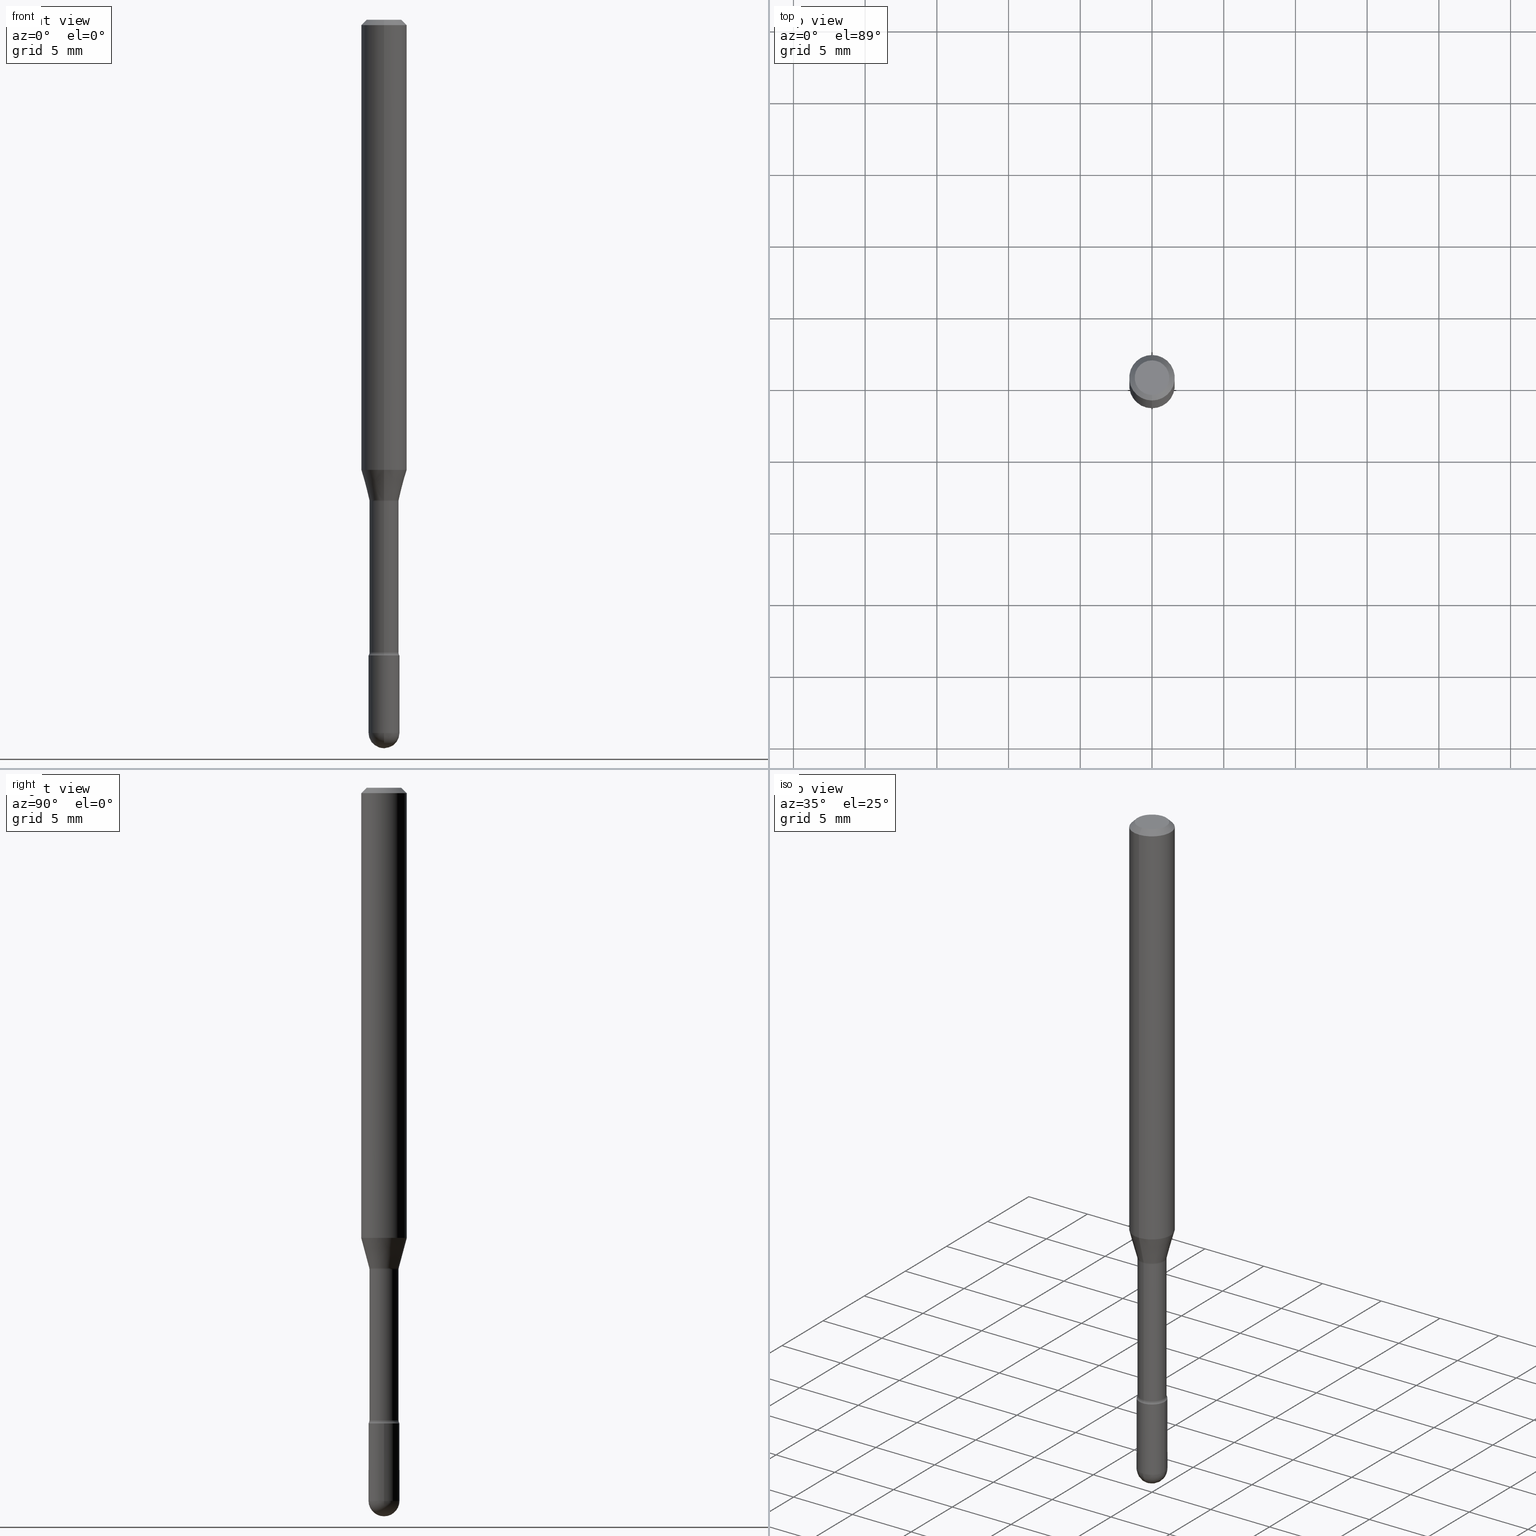
[diagram: canonical four-view strip — front | top / right | iso, engineering-drawing reading convention]
A machine part, canonical four-view strip (front | top / right | iso — engineering-drawing reading convention). The complete STEP part file that produces these views, byte-faithful:
ISO-10303-21;
HEADER;
FILE_DESCRIPTION (( 'STEP AP203' ),
    '1' );
FILE_NAME ('03770.STEP',
    '2024-04-09T20:24:10',
    ( '' ),
    ( '' ),
    'SwSTEP 2.0',
    'SolidWorks 2023',
    '' );
FILE_SCHEMA (( 'CONFIG_CONTROL_DESIGN' ));
ENDSEC;

DATA;
#1 = AXIS2_PLACEMENT_3D ( 'NONE', #249, #113, #322 ) ;
#2 = CARTESIAN_POINT ( 'NONE',  ( 3.223371610898601167E-29, -4.602070291655120308E-15, -1.318092501787273330 ) ) ;
#3 = CIRCLE ( 'NONE', #505, 0.04749999999999999362 ) ;
#4 = PRODUCT_RELATED_PRODUCT_CATEGORY ( 'detail', '', ( #106 ) ) ;
#5 = CARTESIAN_POINT ( 'NONE',  ( 2.023649479663009312E-45, -2.889022025578321170E-31, -8.274793592100877944E-17 ) ) ;
#6 = PERSON_AND_ORGANIZATION ( #358, #391 ) ;
#7 = DIRECTION ( 'NONE',  ( -2.445482093652650553E-29, 3.491462310433390042E-15, 1.000000000000000000 ) ) ;
#8 = CARTESIAN_POINT ( 'NONE',  ( 3.316907271900976096E-16, 0.04749999999999999362, 3.181827173953264696E-17 ) ) ;
#9 = CARTESIAN_POINT ( 'NONE',  ( 4.440892098500625669E-16, 0.06250000000000000000, 2.598570044891592103E-16 ) ) ;
#10 = ADVANCED_FACE ( 'NONE', ( #530 ), #302, .T. ) ;
#11 = CIRCLE ( 'NONE', #463, 0.04250000000000000999 ) ;
#12 = PLANE ( 'NONE',  #235 ) ;
#13 = ORIENTED_EDGE ( 'NONE', *, *, #430, .T. ) ;
#14 = DIRECTION ( 'NONE',  ( -2.445482093652650553E-29, 3.491462310433390042E-15, 1.000000000000000000 ) ) ;
#15 = DIRECTION ( 'NONE',  ( 1.000000000000000000, -6.982962677686276177E-15, 0.000000000000000000 ) ) ;
#16 = VERTEX_POINT ( 'NONE', #353 ) ;
#17 = APPLICATION_PROTOCOL_DEFINITION ( 'international standard', 'config_control_design', 1994, #510 ) ;
#18 = EDGE_CURVE ( 'NONE', #16, #429, #426, .T. ) ;
#19 = DIRECTION ( 'NONE',  ( -2.445482093652650553E-29, 3.491462310433390042E-15, 1.000000000000000000 ) ) ;
#20 = AXIS2_PLACEMENT_3D ( 'NONE', #137, #483, #393 ) ;
#21 = AXIS2_PLACEMENT_3D ( 'NONE', #123, #560, #178 ) ;
#22 = SECURITY_CLASSIFICATION ( '', '', #190 ) ;
#23 = CARTESIAN_POINT ( 'NONE',  ( 4.267366253423875796E-29, -6.092601731706266027E-15, -1.745000000000000107 ) ) ;
#24 = ORIENTED_EDGE ( 'NONE', *, *, #28, .T. ) ;
#25 = PERSON_AND_ORGANIZATION_ROLE ( 'creator' ) ;
#26 = CYLINDRICAL_SURFACE ( 'NONE', #250, 0.03995000000000003409 ) ;
#27 = DIRECTION ( 'NONE',  ( -6.982962677686265922E-15, -1.000000000000000000, 3.491462310433390042E-15 ) ) ;
#28 = EDGE_CURVE ( 'NONE', #310, #143, #104, .T. ) ;
#29 = EDGE_LOOP ( 'NONE', ( #255, #82, #39, #333, #557 ) ) ;
#30 = AXIS2_PLACEMENT_3D ( 'NONE', #227, #49, #186 ) ;
#31 = AXIS2_PLACEMENT_3D ( 'NONE', #44, #307, #42 ) ;
#32 = CARTESIAN_POINT ( 'NONE',  ( 3.019806626980851006E-16, 0.04249999999999389683, -1.745000000000000329 ) ) ;
#33 = VERTEX_POINT ( 'NONE', #276 ) ;
#34 = DIRECTION ( 'NONE',  ( -6.982962677686265922E-15, -1.000000000000000000, 6.838167693777870716E-15 ) ) ;
#35 = MANIFOLD_SOLID_BREP ( 'Body-Move/Copy2[1]', #79 ) ;
#36 = ORIENTED_EDGE ( 'NONE', *, *, #421, .F. ) ;
#37 = EDGE_CURVE ( 'NONE', #205, #33, #361, .T. ) ;
#38 = CARTESIAN_POINT ( 'NONE',  ( 4.246883172195400307E-29, -6.063423629229748682E-15, -1.736633549139569688 ) ) ;
#39 = ORIENTED_EDGE ( 'NONE', *, *, #92, .F. ) ;
#40 = AXIS2_PLACEMENT_3D ( 'NONE', #412, #67, #291 ) ;
#41 = AXIS2_PLACEMENT_3D ( 'NONE', #169, #512, #294 ) ;
#42 = DIRECTION ( 'NONE',  ( 7.105427357601001859E-15, 1.000000000000000000, 0.000000000000000000 ) ) ;
#43 = ORIENTED_EDGE ( 'NONE', *, *, #162, .T. ) ;
#44 = CARTESIAN_POINT ( 'NONE',  ( 3.904432333002176917E-16, 0.05494999999999397589, -1.736633549139569910 ) ) ;
#45 = DIRECTION ( 'NONE',  ( 1.000000000000000000, -6.982962677686266711E-15, 4.876176775795935793E-29 ) ) ;
#46 = EDGE_CURVE ( 'NONE', #205, #555, #48, .T. ) ;
#47 = EDGE_LOOP ( 'NONE', ( #475, #175 ) ) ;
#48 = CIRCLE ( 'NONE', #193, 0.01499999999999997689 ) ;
#49 = DIRECTION ( 'NONE',  ( -2.445468806185136597E-29, 3.491481338843145583E-15, 1.000000000000000000 ) ) ;
#50 = CIRCLE ( 'NONE', #100, 0.01500000000000001159 ) ;
#51 = DATE_AND_TIME ( #273, #80 ) ;
#52 = DIRECTION ( 'NONE',  ( 7.105427357600997914E-15, 1.000000000000000000, 0.000000000000000000 ) ) ;
#53 = ADVANCED_FACE ( 'NONE', ( #91 ), #525, .T. ) ;
#54 = LINE ( 'NONE', #453, #265 ) ;
#55 = LINE ( 'NONE', #9, #373 ) ;
#56 = ADVANCED_FACE ( 'NONE', ( #563 ), #93, .T. ) ;
#57 = CIRCLE ( 'NONE', #533, 0.04249999999999999611 ) ;
#58 = ORIENTED_EDGE ( 'NONE', *, *, #239, .T. ) ;
#59 = CARTESIAN_POINT ( 'NONE',  ( -1.169113584055446105E-44, 1.669184350826100908E-30, 4.780733988912460139E-16 ) ) ;
#60 = DIRECTION ( 'NONE',  ( -6.982962677686265922E-15, -1.000000000000000000, 4.370956789862821150E-15 ) ) ;
#61 = EDGE_CURVE ( 'NONE', #385, #33, #550, .T. ) ;
#62 = PERSON_AND_ORGANIZATION_ROLE ( 'design_supplier' ) ;
#63 = MECHANICAL_CONTEXT ( 'NONE', #90, 'mechanical' ) ;
#64 = DIRECTION ( 'NONE',  ( -2.445482093652650553E-29, 3.491462310433390042E-15, 1.000000000000000000 ) ) ;
#65 = ORIENTED_EDGE ( 'NONE', *, *, #102, .T. ) ;
#66 = COORDINATED_UNIVERSAL_TIME_OFFSET ( 5, 0, .BEHIND. ) ;
#67 = DIRECTION ( 'NONE',  ( -2.445482093652650553E-29, 3.491462310433390042E-15, 1.000000000000000000 ) ) ;
#68 = VERTEX_POINT ( 'NONE', #441 ) ;
#69 = DATE_AND_TIME ( #414, #214 ) ;
#70 = CIRCLE ( 'NONE', #31, 0.01499999999999997689 ) ;
#71 = EDGE_CURVE ( 'NONE', #429, #238, #11, .T. ) ;
#72 = CARTESIAN_POINT ( 'NONE',  ( 2.967759138017140317E-16, 0.04249999999999314049, -1.957500000000000462 ) ) ;
#73 = ADVANCED_FACE ( 'NONE', ( #268 ), #183, .T. ) ;
#74 = FACE_OUTER_BOUND ( 'NONE', #216, .T. ) ;
#75 = VERTEX_POINT ( 'NONE', #395 ) ;
#76 = CARTESIAN_POINT ( 'NONE',  ( -3.837137991388278969E-16, -0.05495000000000461321, -1.321974787463810808 ) ) ;
#77 = ORIENTED_EDGE ( 'NONE', *, *, #443, .F. ) ;
#78 = DESIGN_CONTEXT ( 'detailed design', #510, 'design' ) ;
#79 = CLOSED_SHELL ( 'NONE', ( #386, #53, #247, #56, #73 ) ) ;
#80 = LOCAL_TIME ( 16, 24, 10.00000000000000000, #331 ) ;
#81 = CARTESIAN_POINT ( 'NONE',  ( 2.967759138017089534E-16, 0.04249999999999390377, -1.745000000000000329 ) ) ;
#82 = ORIENTED_EDGE ( 'NONE', *, *, #206, .T. ) ;
#83 = EDGE_CURVE ( 'NONE', #289, #68, #184, .T. ) ;
#84 = DIRECTION ( 'NONE',  ( -6.982962677686265922E-15, -1.000000000000000000, 3.491462310433390042E-15 ) ) ;
#85 = ORIENTED_EDGE ( 'NONE', *, *, #262, .T. ) ;
#86 = ORIENTED_EDGE ( 'NONE', *, *, #491, .F. ) ;
#87 = AXIS2_PLACEMENT_3D ( 'NONE', #233, #406, #195 ) ;
#88 = VECTOR ( 'NONE', #313, 39.37007874015748143 ) ;
#89 = LENGTH_MEASURE_WITH_UNIT ( LENGTH_MEASURE( 0.02539999999999999897 ), #447 );
#90 = APPLICATION_CONTEXT ( 'configuration controlled 3d designs of mechanical parts and assemblies' ) ;
#91 = FACE_OUTER_BOUND ( 'NONE', #337, .T. ) ;
#92 = EDGE_CURVE ( 'NONE', #201, #287, #415, .T. ) ;
#93 = SPHERICAL_SURFACE ( 'NONE', #348, 0.04249999999999994754 ) ;
#94 = EDGE_CURVE ( 'NONE', #310, #75, #503, .T. ) ;
#95 = APPROVAL_STATUS ( 'not_yet_approved' ) ;
#96 = DIRECTION ( 'NONE',  ( 6.982962677686265922E-15, 1.000000000000000000, -6.427877632151215276E-15 ) ) ;
#97 = PERSON_AND_ORGANIZATION ( #358, #391 ) ;
#98 = CIRCLE ( 'NONE', #41, 0.04249999999999994754 ) ;
#99 = DIRECTION ( 'NONE',  ( -6.982962677686265133E-15, -1.000000000000000000, 6.838167693777879394E-15 ) ) ;
#100 = AXIS2_PLACEMENT_3D ( 'NONE', #364, #392, #52 ) ;
#101 = CC_DESIGN_SECURITY_CLASSIFICATION ( #22, ( #374 ) ) ;
#102 = EDGE_CURVE ( 'NONE', #143, #264, #55, .T. ) ;
#103 = DIRECTION ( 'NONE',  ( 2.445482093652650553E-29, -3.491462310433390042E-15, -1.000000000000000000 ) ) ;
#104 = LINE ( 'NONE', #314, #514 ) ;
#105 = DIRECTION ( 'NONE',  ( -6.982962677686265922E-15, -1.000000000000000000, 3.491462310433390436E-15 ) ) ;
#106 = PRODUCT ( '03770', '03770', '', ( #63 ) ) ;
#107 = LINE ( 'NONE', #369, #120 ) ;
#108 = DIRECTION ( 'NONE',  ( -7.105427357601001070E-15, -1.000000000000000000, 0.000000000000000000 ) ) ;
#109 = AXIS2_PLACEMENT_3D ( 'NONE', #482, #231, #480 ) ;
#110 = ORIENTED_EDGE ( 'NONE', *, *, #162, .F. ) ;
#111 = LOCAL_TIME ( 16, 24, 10.00000000000000000, #187 ) ;
#112 = PERSON_AND_ORGANIZATION ( #358, #391 ) ;
#113 = DIRECTION ( 'NONE',  ( -2.445482093652650553E-29, 3.491462310433390042E-15, 1.000000000000000000 ) ) ;
#114 = ORIENTED_EDGE ( 'NONE', *, *, #542, .F. ) ;
#115 = DIRECTION ( 'NONE',  ( -2.445468806185136877E-29, 3.491481338843145188E-15, 1.000000000000000000 ) ) ;
#116 = ORIENTED_EDGE ( 'NONE', *, *, #71, .F. ) ;
#117 = PERSON_AND_ORGANIZATION_ROLE ( 'creator' ) ;
#118 = CARTESIAN_POINT ( 'NONE',  ( 0.04249999999999999611, -6.389410850082955497E-15, -1.745000000000000107 ) ) ;
#119 = AXIS2_PLACEMENT_3D ( 'NONE', #532, #528, #99 ) ;
#120 = VECTOR ( 'NONE', #225, 39.37007874015748143 ) ;
#121 = ADVANCED_FACE ( 'NONE', ( #161 ), #492, .T. ) ;
#122 = ORIENTED_EDGE ( 'NONE', *, *, #484, .T. ) ;
#123 = CARTESIAN_POINT ( 'NONE',  ( -1.169113584055446105E-44, 1.669184350826100908E-30, 4.780733988912460139E-16 ) ) ;
#124 = APPROVAL ( #298, 'UNSPECIFIED' ) ;
#125 = EDGE_LOOP ( 'NONE', ( #301, #488, #221, #77 ) ) ;
#126 = DIRECTION ( 'NONE',  ( -2.445482093652650553E-29, 3.491462310433390042E-15, 1.000000000000000000 ) ) ;
#127 = COORDINATED_UNIVERSAL_TIME_OFFSET ( 5, 0, .BEHIND. ) ;
#128 = EDGE_CURVE ( 'NONE', #469, #385, #409, .T. ) ;
#129 = ORIENTED_EDGE ( 'NONE', *, *, #181, .T. ) ;
#130 = AXIS2_PLACEMENT_3D ( 'NONE', #456, #64, #433 ) ;
#131 = CARTESIAN_POINT ( 'NONE',  ( 0.000000000000000000, 0.000000000000000000, 0.000000000000000000 ) ) ;
#132 = APPROVAL_ROLE ( '' ) ;
#133 = ORIENTED_EDGE ( 'NONE', *, *, #46, .F. ) ;
#134 = DIRECTION ( 'NONE',  ( -6.982962677686266711E-15, -1.000000000000000000, 6.427877632151208176E-15 ) ) ;
#135 = ORIENTED_EDGE ( 'NONE', *, *, #128, .F. ) ;
#136 = CARTESIAN_POINT ( 'NONE',  ( -4.364351673553912750E-16, -0.06250000000000005551, -0.01499999999999986587 ) ) ;
#137 = CARTESIAN_POINT ( 'NONE',  ( 4.787005188107404686E-29, -6.834574720785457840E-15, -1.957500000000000018 ) ) ;
#138 = EDGE_CURVE ( 'NONE', #33, #385, #256, .T. ) ;
#139 = CIRCLE ( 'NONE', #398, 0.04249999999999999611 ) ;
#140 = AXIS2_PLACEMENT_3D ( 'NONE', #164, #351, #466 ) ;
#141 = LINE ( 'NONE', #522, #88 ) ;
#142 = CC_DESIGN_DATE_AND_TIME_ASSIGNMENT ( #69, #344, ( #22 ) ) ;
#143 = VERTEX_POINT ( 'NONE', #282 ) ;
#144 = EDGE_LOOP ( 'NONE', ( #86, #390, #562, #155 ) ) ;
#145 = CARTESIAN_POINT ( 'NONE',  ( -2.789693589735665255E-16, -0.03995000000000003409, 6.175573181930600695E-16 ) ) ;
#146 = EDGE_CURVE ( 'NONE', #555, #437, #139, .T. ) ;
#147 = CC_DESIGN_APPROVAL ( #504, ( #267 ) ) ;
#148 = ORIENTED_EDGE ( 'NONE', *, *, #46, .T. ) ;
#149 = DIRECTION ( 'NONE',  ( -2.445482093652650834E-29, 3.491462310433390042E-15, 1.000000000000000000 ) ) ;
#150 = ORIENTED_EDGE ( 'NONE', *, *, #206, .F. ) ;
#151 = CARTESIAN_POINT ( 'NONE',  ( 2.023649479663009312E-45, -2.889022025578321170E-31, -8.274793592100877944E-17 ) ) ;
#152 = CARTESIAN_POINT ( 'NONE',  ( 4.787005188107404686E-29, -6.834574720785457840E-15, -1.957500000000000018 ) ) ;
#153 = ADVANCED_BREP_SHAPE_REPRESENTATION ( '03770', ( #35, #425, #408 ), #516 ) ;
#154 = FACE_OUTER_BOUND ( 'NONE', #125, .T. ) ;
#155 = ORIENTED_EDGE ( 'NONE', *, *, #198, .T. ) ;
#156 = AXIS2_PLACEMENT_3D ( 'NONE', #405, #539, #199 ) ;
#157 = DATE_TIME_ROLE ( 'creation_date' ) ;
#158 = LOCAL_TIME ( 16, 24, 10.00000000000000000, #127 ) ;
#159 = DIRECTION ( 'NONE',  ( -6.982962677686266711E-15, -1.000000000000000000, 6.427877632151208176E-15 ) ) ;
#160 = EDGE_LOOP ( 'NONE', ( #261, #315, #13, #519 ) ) ;
#161 = FACE_OUTER_BOUND ( 'NONE', #163, .T. ) ;
#162 = EDGE_CURVE ( 'NONE', #242, #143, #558, .T. ) ;
#163 = EDGE_LOOP ( 'NONE', ( #43, #65, #384, #173 ) ) ;
#164 = CARTESIAN_POINT ( 'NONE',  ( 3.232848105305976376E-29, -4.615650300851030950E-15, -1.321974787463811252 ) ) ;
#165 = SHAPE_DEFINITION_REPRESENTATION ( #285, #153 ) ;
#166 = ORIENTED_EDGE ( 'NONE', *, *, #61, .F. ) ;
#167 = AXIS2_PLACEMENT_3D ( 'NONE', #279, #543, #540 ) ;
#168 = AXIS2_PLACEMENT_3D ( 'NONE', #59, #14, #105 ) ;
#169 = CARTESIAN_POINT ( 'NONE',  ( 4.787005188107404686E-29, -6.834574720785457840E-15, -1.957500000000000018 ) ) ;
#170 = PERSON_AND_ORGANIZATION ( #358, #391 ) ;
#171 = EDGE_LOOP ( 'NONE', ( #58, #24, #110, #212 ) ) ;
#172 = CARTESIAN_POINT ( 'NONE',  ( -3.773273898774340269E-16, -0.04749999999999999362, 8.309652382457724015E-17 ) ) ;
#173 = ORIENTED_EDGE ( 'NONE', *, *, #362, .F. ) ;
#174 = DIRECTION ( 'NONE',  ( -2.445482093652650553E-29, 3.491462310433390042E-15, 1.000000000000000000 ) ) ;
#175 = ORIENTED_EDGE ( 'NONE', *, *, #83, .T. ) ;
#176 = VECTOR ( 'NONE', #523, 39.37007874015748143 ) ;
#177 = CIRCLE ( 'NONE', #303, 0.04249999999999999611 ) ;
#178 = DIRECTION ( 'NONE',  ( -6.982962677686265133E-15, -1.000000000000000000, 3.491462310433388464E-15 ) ) ;
#179 = ORIENTED_EDGE ( 'NONE', *, *, #37, .F. ) ;
#180 = DIRECTION ( 'NONE',  ( 1.000000000000000000, -6.982962677686273810E-15, 0.000000000000000000 ) ) ;
#181 = EDGE_CURVE ( 'NONE', #287, #201, #57, .T. ) ;
#182 = CYLINDRICAL_SURFACE ( 'NONE', #168, 0.06250000000000000000 ) ;
#183 = CYLINDRICAL_SURFACE ( 'NONE', #311, 0.04250000000000000999 ) ;
#184 = CIRCLE ( 'NONE', #222, 0.04749999999999999362 ) ;
#185 = APPROVAL_PERSON_ORGANIZATION ( #97, #217, #529 ) ;
#186 = DIRECTION ( 'NONE',  ( 1.000000000000000000, -6.982962677686273810E-15, 0.000000000000000000 ) ) ;
#187 = COORDINATED_UNIVERSAL_TIME_OFFSET ( 5, 0, .BEHIND. ) ;
#188 = EDGE_CURVE ( 'NONE', #238, #201, #544, .T. ) ;
#189 = DIRECTION ( 'NONE',  ( -2.445468806185136597E-29, 3.491481338843145583E-15, 1.000000000000000000 ) ) ;
#190 = SECURITY_CLASSIFICATION_LEVEL ( 'unclassified' ) ;
#191 = CARTESIAN_POINT ( 'NONE',  ( 4.787005188107404686E-29, -6.834574720785457840E-15, -1.957500000000000018 ) ) ;
#192 = DIRECTION ( 'NONE',  ( 6.982962677686265922E-15, 1.000000000000000000, -3.491462310433390042E-15 ) ) ;
#193 = AXIS2_PLACEMENT_3D ( 'NONE', #445, #229, #401 ) ;
#194 = AXIS2_PLACEMENT_3D ( 'NONE', #8, #263, #192 ) ;
#195 = DIRECTION ( 'NONE',  ( -6.982962677686265922E-15, -1.000000000000000000, 3.491462310433390042E-15 ) ) ;
#196 = CARTESIAN_POINT ( 'NONE',  ( 2.929212428171439828E-16, 0.03994999999999399726, -1.736633549139569910 ) ) ;
#197 = CARTESIAN_POINT ( 'NONE',  ( 4.267343066793063832E-29, -6.092634936281288846E-15, -1.745000000000000107 ) ) ;
#198 = EDGE_CURVE ( 'NONE', #264, #549, #363, .T. ) ;
#199 = DIRECTION ( 'NONE',  ( -6.982962677686265922E-15, -1.000000000000000000, 4.370956789862821150E-15 ) ) ;
#200 = CARTESIAN_POINT ( 'NONE',  ( 4.267343066793063832E-29, -6.092634936281288846E-15, -1.745000000000000107 ) ) ;
#201 = VERTEX_POINT ( 'NONE', #118 ) ;
#202 = CARTESIAN_POINT ( 'NONE',  ( 0.000000000000000000, 0.000000000000000000, 0.000000000000000000 ) ) ;
#203 = DIRECTION ( 'NONE',  ( -2.445482093652650553E-29, 3.491462310433390042E-15, 1.000000000000000000 ) ) ;
#204 = AXIS2_PLACEMENT_3D ( 'NONE', #2, #7, #490 ) ;
#205 = VERTEX_POINT ( 'NONE', #370 ) ;
#206 = EDGE_CURVE ( 'NONE', #16, #287, #286, .T. ) ;
#207 = CARTESIAN_POINT ( 'NONE',  ( 3.022230103443863054E-29, -4.314896652492206227E-15, -1.235842254289322151 ) ) ;
#208 = EDGE_LOOP ( 'NONE', ( #446, #129 ) ) ;
#209 = CARTESIAN_POINT ( 'NONE',  ( 2.838618229362026185E-16, 0.03994999999999538504, -1.321974787463811474 ) ) ;
#210 = ORIENTED_EDGE ( 'NONE', *, *, #362, .T. ) ;
#211 = CARTESIAN_POINT ( 'NONE',  ( 4.892754840734779604E-29, -6.980360303238103264E-15, -2.000000000000000000 ) ) ;
#212 = ORIENTED_EDGE ( 'NONE', *, *, #462, .F. ) ;
#213 = AXIS2_PLACEMENT_3D ( 'NONE', #341, #389, #552 ) ;
#214 = LOCAL_TIME ( 16, 24, 10.00000000000000000, #66 ) ;
#215 = CARTESIAN_POINT ( 'NONE',  ( 4.246906247657268007E-29, -6.063390583854980226E-15, -1.736633549139569688 ) ) ;
#216 = EDGE_LOOP ( 'NONE', ( #517, #122, #379, #360 ) ) ;
#217 = APPROVAL ( #95, 'UNSPECIFIED' ) ;
#218 = FACE_OUTER_BOUND ( 'NONE', #473, .T. ) ;
#219 = EDGE_LOOP ( 'NONE', ( #442, #511, #299, #340 ) ) ;
#220 = CARTESIAN_POINT ( 'NONE',  ( -1.169113584055446105E-44, 1.669184350826100908E-30, 4.780733988912460139E-16 ) ) ;
#221 = ORIENTED_EDGE ( 'NONE', *, *, #462, .T. ) ;
#222 = AXIS2_PLACEMENT_3D ( 'NONE', #5, #565, #274 ) ;
#223 = TOROIDAL_SURFACE ( 'NONE', #526, 0.05495000000000003354, 0.01499999999999998036 ) ;
#224 = EDGE_CURVE ( 'NONE', #205, #469, #470, .T. ) ;
#225 = DIRECTION ( 'NONE',  ( -1.807323732225327773E-15, -0.2588190451025178529, 0.9659258262890690894 ) ) ;
#226 = CARTESIAN_POINT ( 'NONE',  ( 4.787005188107404686E-29, -6.834574720785457840E-15, -1.957500000000000018 ) ) ;
#227 = CARTESIAN_POINT ( 'NONE',  ( 4.787005188107404686E-29, -6.834574720785457840E-15, -1.957500000000000018 ) ) ;
#228 = EDGE_CURVE ( 'NONE', #68, #264, #54, .T. ) ;
#229 = DIRECTION ( 'NONE',  ( -1.000000000000000000, 6.982962677686265922E-15, -4.883557194083112340E-29 ) ) ;
#230 = APPROVAL_DATE_TIME ( #51, #217 ) ;
#231 = DIRECTION ( 'NONE',  ( -2.445482093652650553E-29, 3.491462310433390042E-15, 1.000000000000000000 ) ) ;
#232 = CARTESIAN_POINT ( 'NONE',  ( 4.246883172195400307E-29, -6.063423629229748682E-15, -1.736633549139569688 ) ) ;
#233 = CARTESIAN_POINT ( 'NONE',  ( 3.232848105305976376E-29, -4.615650300851030950E-15, -1.321974787463811252 ) ) ;
#234 = DIRECTION ( 'NONE',  ( -2.445482093652650553E-29, 3.491462310433390042E-15, 1.000000000000000000 ) ) ;
#235 = AXIS2_PLACEMENT_3D ( 'NONE', #197, #368, #537 ) ;
#236 = CARTESIAN_POINT ( 'NONE',  ( -1.169113584055446105E-44, 1.669184350826100908E-30, 4.780733988912460139E-16 ) ) ;
#237 = ADVANCED_FACE ( 'NONE', ( #241 ), #335, .F. ) ;
#238 = VERTEX_POINT ( 'NONE', #535 ) ;
#239 = EDGE_CURVE ( 'NONE', #75, #310, #407, .T. ) ;
#240 = FACE_OUTER_BOUND ( 'NONE', #219, .T. ) ;
#241 = FACE_OUTER_BOUND ( 'NONE', #160, .T. ) ;
#242 = VERTEX_POINT ( 'NONE', #330 ) ;
#243 = DIRECTION ( 'NONE',  ( 0.000000000000000000, 0.000000000000000000, 1.000000000000000000 ) ) ;
#244 = UNCERTAINTY_MEASURE_WITH_UNIT (LENGTH_MEASURE( 1.000000000000000082E-05 ), #275, 'distance_accuracy_value', 'NONE');
#245 = CARTESIAN_POINT ( 'NONE',  ( 2.838618229361602172E-16, 0.03995000000000003409, 3.385894795894320077E-16 ) ) ;
#246 = ORIENTED_EDGE ( 'NONE', *, *, #188, .T. ) ;
#247 = ADVANCED_FACE ( 'NONE', ( #448 ), #12, .T. ) ;
#248 = CLOSED_SHELL ( 'NONE', ( #338, #403, #306, #499, #121, #10, #278, #520, #396, #478, #328, #439, #320, #237 ) ) ;
#249 = CARTESIAN_POINT ( 'NONE',  ( 3.232865671003018680E-29, -4.615625145773088922E-15, -1.321974787463811252 ) ) ;
#250 = AXIS2_PLACEMENT_3D ( 'NONE', #220, #174, #343 ) ;
#251 = CARTESIAN_POINT ( 'NONE',  ( -0.04249999999999999611, -6.161624165835330496E-15, -1.745000000000000107 ) ) ;
#252 = FACE_OUTER_BOUND ( 'NONE', #29, .T. ) ;
#253 = ORIENTED_EDGE ( 'NONE', *, *, #198, .F. ) ;
#254 = DIRECTION ( 'NONE',  ( -2.445468806185136597E-29, 3.491481338843145583E-15, 1.000000000000000000 ) ) ;
#255 = ORIENTED_EDGE ( 'NONE', *, *, #325, .T. ) ;
#256 = CIRCLE ( 'NONE', #1, 0.03995000000000000634 ) ;
#257 = AXIS2_PLACEMENT_3D ( 'NONE', #489, #103, #367 ) ;
#258 = FACE_OUTER_BOUND ( 'NONE', #308, .T. ) ;
#259 = ORIENTED_EDGE ( 'NONE', *, *, #146, .F. ) ;
#260 = FACE_OUTER_BOUND ( 'NONE', #295, .T. ) ;
#261 = ORIENTED_EDGE ( 'NONE', *, *, #484, .F. ) ;
#262 = EDGE_CURVE ( 'NONE', #323, #429, #479, .T. ) ;
#263 = DIRECTION ( 'NONE',  ( 2.445482093652650273E-29, -3.491462310433390042E-15, -1.000000000000000000 ) ) ;
#264 = VERTEX_POINT ( 'NONE', #497 ) ;
#265 = VECTOR ( 'NONE', #459, 39.37007874015748143 ) ;
#266 = DIRECTION ( 'NONE',  ( -6.982962677686265922E-15, -1.000000000000000000, 3.491462310433390042E-15 ) ) ;
#267 = PRODUCT_DEFINITION ( 'UNKNOWN', '', #374, #78 ) ;
#268 = FACE_OUTER_BOUND ( 'NONE', #513, .T. ) ;
#269 = DIRECTION ( 'NONE',  ( -1.000000000000000000, 6.982962677686265922E-15, -4.883557194083112340E-29 ) ) ;
#270 = DATE_AND_TIME ( #566, #551 ) ;
#271 = ORIENTED_EDGE ( 'NONE', *, *, #146, .T. ) ;
#272 = CC_DESIGN_PERSON_AND_ORGANIZATION_ASSIGNMENT ( #458, #25, ( #267 ) ) ;
#273 = CALENDAR_DATE ( 2024, 9, 4 ) ;
#274 = DIRECTION ( 'NONE',  ( -6.982962677686266711E-15, -1.000000000000000000, 3.491462310433390436E-15 ) ) ;
#275 =( CONVERSION_BASED_UNIT ( 'INCH', #89 ) LENGTH_UNIT ( ) NAMED_UNIT ( #321 ) );
#276 = CARTESIAN_POINT ( 'NONE',  ( -2.789693589735340343E-16, -0.03995000000000462764, -1.321974787463810808 ) ) ;
#277 = APPLICATION_PROTOCOL_DEFINITION ( 'international standard', 'config_control_design', 1994, #90 ) ;
#278 = ADVANCED_FACE ( 'NONE', ( #154 ), #438, .T. ) ;
#279 = CARTESIAN_POINT ( 'NONE',  ( 3.223371610898601167E-29, -4.602070291655120308E-15, -1.318092501787273330 ) ) ;
#280 = ORIENTED_EDGE ( 'NONE', *, *, #443, .T. ) ;
#281 = FACE_OUTER_BOUND ( 'NONE', #508, .T. ) ;
#282 = CARTESIAN_POINT ( 'NONE',  ( 4.440892098500929873E-16, 0.06249999999999572564, -1.235842254289322373 ) ) ;
#283 = ORIENTED_EDGE ( 'NONE', *, *, #421, .T. ) ;
#284 = APPROVAL_STATUS ( 'not_yet_approved' ) ;
#285 = PRODUCT_DEFINITION_SHAPE ( 'NONE', 'NONE',  #267 ) ;
#286 = LINE ( 'NONE', #498, #290 ) ;
#287 = VERTEX_POINT ( 'NONE', #251 ) ;
#288 = CARTESIAN_POINT ( 'NONE',  ( 0.04250000000000000999, -2.967759138016664042E-16, 2.072375129713273202E-30 ) ) ;
#289 = VERTEX_POINT ( 'NONE', #172 ) ;
#290 = VECTOR ( 'NONE', #115, 39.37007874015748143 ) ;
#291 = DIRECTION ( 'NONE',  ( -6.982962677686265922E-15, -1.000000000000000000, 6.838167693777870716E-15 ) ) ;
#292 = CONICAL_SURFACE ( 'NONE', #213, 0.06250000000000000000, 0.7853981633974483900 ) ;
#293 = ORIENTED_EDGE ( 'NONE', *, *, #102, .F. ) ;
#294 = DIRECTION ( 'NONE',  ( 6.982962677686265133E-15, 1.000000000000000000, 0.000000000000000000 ) ) ;
#295 = EDGE_LOOP ( 'NONE', ( #135, #449, #305, #166 ) ) ;
#296 = EDGE_CURVE ( 'NONE', #469, #205, #399, .T. ) ;
#297 = CARTESIAN_POINT ( 'NONE',  ( 4.787005188107404686E-29, -6.834574720785457840E-15, -1.957500000000000018 ) ) ;
#298 = APPROVAL_STATUS ( 'not_yet_approved' ) ;
#299 = ORIENTED_EDGE ( 'NONE', *, *, #345, .T. ) ;
#300 = DIRECTION ( 'NONE',  ( -2.445482093652650553E-29, 3.491462310433390042E-15, 1.000000000000000000 ) ) ;
#301 = ORIENTED_EDGE ( 'NONE', *, *, #28, .F. ) ;
#302 = CONICAL_SURFACE ( 'NONE', #109, 0.04046111260566399165, 0.2617993877991499074 ) ;
#303 = AXIS2_PLACEMENT_3D ( 'NONE', #556, #515, #134 ) ;
#304 = DIRECTION ( 'NONE',  ( 1.000000000000000000, -6.982962677686266711E-15, 4.876176775795935793E-29 ) ) ;
#305 = ORIENTED_EDGE ( 'NONE', *, *, #37, .T. ) ;
#306 = ADVANCED_FACE ( 'NONE', ( #218 ), #223, .F. ) ;
#307 = DIRECTION ( 'NONE',  ( 1.000000000000000000, -7.105427357601001070E-15, 4.926315275511271420E-29 ) ) ;
#308 = EDGE_LOOP ( 'NONE', ( #259, #467 ) ) ;
#309 = DIRECTION ( 'NONE',  ( -2.445468806185136597E-29, 3.491481338843145583E-15, 1.000000000000000000 ) ) ;
#310 = VERTEX_POINT ( 'NONE', #339 ) ;
#311 = AXIS2_PLACEMENT_3D ( 'NONE', #440, #316, #45 ) ;
#312 = CIRCLE ( 'NONE', #329, 0.04250000000000000999 ) ;
#313 = DIRECTION ( 'NONE',  ( -4.851104656540964275E-15, -0.7071067811865500152, -0.7071067811865450192 ) ) ;
#314 = CARTESIAN_POINT ( 'NONE',  ( 2.874934964272918294E-16, 0.04046111260565939116, -1.318092501787273552 ) ) ;
#315 = ORIENTED_EDGE ( 'NONE', *, *, #239, .F. ) ;
#316 = DIRECTION ( 'NONE',  ( -2.445468806185136597E-29, 3.491481338843145583E-15, 1.000000000000000000 ) ) ;
#317 = VECTOR ( 'NONE', #418, 39.37007874015748143 ) ;
#318 = CONICAL_SURFACE ( 'NONE', #257, 0.06250000000000000000, 0.7853981633974483900 ) ;
#319 = ORIENTED_EDGE ( 'NONE', *, *, #378, .T. ) ;
#320 = ADVANCED_FACE ( 'NONE', ( #260 ), #26, .T. ) ;
#321 = DIMENSIONAL_EXPONENTS ( 1.000000000000000000, 0.000000000000000000, 0.000000000000000000, 0.000000000000000000, 0.000000000000000000, 0.000000000000000000, 0.000000000000000000 ) ;
#322 = DIRECTION ( 'NONE',  ( -6.982962677686265133E-15, -1.000000000000000000, 6.838167693777879394E-15 ) ) ;
#323 = VERTEX_POINT ( 'NONE', #211 ) ;
#324 = FACE_OUTER_BOUND ( 'NONE', #47, .T. ) ;
#325 = EDGE_CURVE ( 'NONE', #413, #16, #312, .T. ) ;
#326 = DIRECTION ( 'NONE',  ( -1.000000000000000000, 7.105427357601001070E-15, -4.926315508542082329E-29 ) ) ;
#327 = PERSON_AND_ORGANIZATION ( #358, #391 ) ;
#328 = ADVANCED_FACE ( 'NONE', ( #258 ), #554, .F. ) ;
#329 = AXIS2_PLACEMENT_3D ( 'NONE', #297, #377, #422 ) ;
#330 = CARTESIAN_POINT ( 'NONE',  ( -4.364351673553611504E-16, -0.06250000000000427436, -1.235842254289321929 ) ) ;
#331 = COORDINATED_UNIVERSAL_TIME_OFFSET ( 5, 0, .BEHIND. ) ;
#332 = DIRECTION ( 'NONE',  ( -2.445482093652650553E-29, 3.491462310433390042E-15, 1.000000000000000000 ) ) ;
#333 = ORIENTED_EDGE ( 'NONE', *, *, #188, .F. ) ;
#334 = DIRECTION ( 'NONE',  ( -6.982962677686265922E-15, -1.000000000000000000, 3.483106191921935554E-15 ) ) ;
#335 = TOROIDAL_SURFACE ( 'NONE', #87, 0.05494999999999999191, 0.01500000000000000638 ) ;
#336 = CYLINDRICAL_SURFACE ( 'NONE', #496, 0.04250000000000000999 ) ;
#337 = EDGE_LOOP ( 'NONE', ( #36, #85, #432, #434 ) ) ;
#338 = ADVANCED_FACE ( 'NONE', ( #74 ), #428, .F. ) ;
#339 = CARTESIAN_POINT ( 'NONE',  ( 3.657913531386922851E-16, 0.04046111260565939116, -1.318092501787273552 ) ) ;
#340 = ORIENTED_EDGE ( 'NONE', *, *, #228, .F. ) ;
#341 = CARTESIAN_POINT ( 'NONE',  ( 3.668223140478995781E-31, -5.237193465650114152E-17, -0.01500000000000008271 ) ) ;
#342 = ORIENTED_EDGE ( 'NONE', *, *, #224, .T. ) ;
#343 = DIRECTION ( 'NONE',  ( -6.982962677686265133E-15, -1.000000000000000000, 3.491462310433388464E-15 ) ) ;
#344 = DATE_TIME_ROLE ( 'classification_date' ) ;
#345 = EDGE_CURVE ( 'NONE', #549, #264, #559, .T. ) ;
#346 = AXIS2_PLACEMENT_3D ( 'NONE', #375, #332, #334 ) ;
#347 = ORIENTED_EDGE ( 'NONE', *, *, #296, .F. ) ;
#348 = AXIS2_PLACEMENT_3D ( 'NONE', #226, #269, #96 ) ;
#349 = CIRCLE ( 'NONE', #156, 0.06250000000000000000 ) ;
#350 = CC_DESIGN_APPROVAL ( #124, ( #22 ) ) ;
#351 = DIRECTION ( 'NONE',  ( -2.445482093652650553E-29, 3.491462310433390042E-15, 1.000000000000000000 ) ) ;
#352 = EDGE_LOOP ( 'NONE', ( #293, #280, #210, #253 ) ) ;
#353 = CARTESIAN_POINT ( 'NONE',  ( -0.04250000000000000999, -6.161624165835330496E-15, -1.957500000000000018 ) ) ;
#354 = CARTESIAN_POINT ( 'NONE',  ( 4.787005188107404686E-29, -6.834574720785457840E-15, -1.957500000000000018 ) ) ;
#355 = CARTESIAN_POINT ( 'NONE',  ( 4.267343066793063832E-29, -6.092634936281288846E-15, -1.745000000000000107 ) ) ;
#356 = CC_DESIGN_PERSON_AND_ORGANIZATION_ASSIGNMENT ( #538, #461, ( #22 ) ) ;
#357 = ORIENTED_EDGE ( 'NONE', *, *, #224, .F. ) ;
#358 = PERSON ( 'UNSPECIFIED', 'UNSPECIFIED', 'UNSPECIFIED', ('UNSPECIFIED'), ('UNSPECIFIED'), ('UNSPECIFIED') ) ;
#359 = APPROVAL_DATE_TIME ( #270, #504 ) ;
#360 = ORIENTED_EDGE ( 'NONE', *, *, #430, .F. ) ;
#361 = LINE ( 'NONE', #145, #176 ) ;
#362 = EDGE_CURVE ( 'NONE', #242, #549, #507, .T. ) ;
#363 = CIRCLE ( 'NONE', #346, 0.06250000000000000000 ) ;
#364 = CARTESIAN_POINT ( 'NONE',  ( 3.904432333002072886E-16, 0.05494999999999537060, -1.321974787463811474 ) ) ;
#365 = AXIS2_PLACEMENT_3D ( 'NONE', #232, #234, #266 ) ;
#366 = DIRECTION ( 'NONE',  ( -2.445468806185136877E-29, 3.491481338843145188E-15, 1.000000000000000000 ) ) ;
#367 = DIRECTION ( 'NONE',  ( 6.982962677686265922E-15, 1.000000000000000000, -3.483106191921935554E-15 ) ) ;
#368 = DIRECTION ( 'NONE',  ( -2.438088387897960049E-29, 3.491481338843145188E-15, 1.000000000000000000 ) ) ;
#369 = CARTESIAN_POINT ( 'NONE',  ( -2.825384392229807714E-16, -0.04046111260566859213, -1.318092501787272885 ) ) ;
#370 = CARTESIAN_POINT ( 'NONE',  ( -2.789693589735242721E-16, -0.03995000000000611950, -1.736633549139569244 ) ) ;
#371 = ORIENTED_EDGE ( 'NONE', *, *, #18, .T. ) ;
#372 = DIRECTION ( 'NONE',  ( 1.000000000000000000, 0.000000000000000000, 0.000000000000000000 ) ) ;
#373 = VECTOR ( 'NONE', #149, 39.37007874015748143 ) ;
#374 = PRODUCT_DEFINITION_FORMATION_WITH_SPECIFIED_SOURCE ( 'ANY', '', #106, .NOT_KNOWN. ) ;
#375 = CARTESIAN_POINT ( 'NONE',  ( 3.668223140478995781E-31, -5.237193465650114152E-17, -0.01500000000000008271 ) ) ;
#376 = DIRECTION ( 'NONE',  ( -2.445468806185136597E-29, 3.491481338843145583E-15, 1.000000000000000000 ) ) ;
#377 = DIRECTION ( 'NONE',  ( -2.445468806185136597E-29, 3.491481338843145583E-15, 1.000000000000000000 ) ) ;
#378 = EDGE_CURVE ( 'NONE', #437, #555, #177, .T. ) ;
#379 = ORIENTED_EDGE ( 'NONE', *, *, #61, .T. ) ;
#380 = VECTOR ( 'NONE', #366, 39.37007874015748143 ) ;
#381 = DIRECTION ( 'NONE',  ( -6.982962677686265922E-15, -1.000000000000000000, 3.483106191921935554E-15 ) ) ;
#382 = CALENDAR_DATE ( 2024, 9, 4 ) ;
#383 = AXIS2_PLACEMENT_3D ( 'NONE', #76, #423, #427 ) ;
#384 = ORIENTED_EDGE ( 'NONE', *, *, #345, .F. ) ;
#385 = VERTEX_POINT ( 'NONE', #209 ) ;
#386 = ADVANCED_FACE ( 'NONE', ( #252 ), #336, .T. ) ;
#387 = DIRECTION ( 'NONE',  ( -2.445482093652650273E-29, 3.491462310433390042E-15, 1.000000000000000000 ) ) ;
#388 = EDGE_LOOP ( 'NONE', ( #553, #283, #420, #116 ) ) ;
#389 = DIRECTION ( 'NONE',  ( 2.445482093652650553E-29, -3.491462310433390042E-15, -1.000000000000000000 ) ) ;
#390 = ORIENTED_EDGE ( 'NONE', *, *, #561, .F. ) ;
#391 = ORGANIZATION ( 'UNSPECIFIED', 'UNSPECIFIED', '' ) ;
#392 = DIRECTION ( 'NONE',  ( 1.000000000000000000, -7.105427357601001070E-15, 4.926315275511271420E-29 ) ) ;
#393 = DIRECTION ( 'NONE',  ( 6.982962677686265922E-15, 1.000000000000000000, -6.427877632151215276E-15 ) ) ;
#394 = DIRECTION ( 'NONE',  ( -2.445482093652650553E-29, 3.491462310433390042E-15, 1.000000000000000000 ) ) ;
#395 = CARTESIAN_POINT ( 'NONE',  ( -2.825384392229807714E-16, -0.04046111260566859213, -1.318092501787272885 ) ) ;
#396 = ADVANCED_FACE ( 'NONE', ( #474 ), #292, .T. ) ;
#397 = DIRECTION ( 'NONE',  ( 1.000000000000000000, -6.982962677686276177E-15, 0.000000000000000000 ) ) ;
#398 = AXIS2_PLACEMENT_3D ( 'NONE', #23, #501, #159 ) ;
#399 = CIRCLE ( 'NONE', #452, 0.03995000000000005491 ) ;
#400 = DATE_AND_TIME ( #500, #111 ) ;
#401 = DIRECTION ( 'NONE',  ( -6.982962677686266711E-15, -1.000000000000000000, 0.000000000000000000 ) ) ;
#402 = PERSON_AND_ORGANIZATION ( #358, #391 ) ;
#403 = ADVANCED_FACE ( 'NONE', ( #464 ), #509, .T. ) ;
#404 = DIRECTION ( 'NONE',  ( -2.445468806185136597E-29, 3.491481338843145583E-15, 1.000000000000000000 ) ) ;
#405 = CARTESIAN_POINT ( 'NONE',  ( 3.022230103443863054E-29, -4.314896652492206227E-15, -1.235842254289322151 ) ) ;
#406 = DIRECTION ( 'NONE',  ( -2.445482093652650553E-29, 3.491462310433390042E-15, 1.000000000000000000 ) ) ;
#407 = CIRCLE ( 'NONE', #167, 0.04046111260566399165 ) ;
#408 = AXIS2_PLACEMENT_3D ( 'NONE', #202, #243, #372 ) ;
#409 = LINE ( 'NONE', #245, #317 ) ;
#410 = FACE_OUTER_BOUND ( 'NONE', #352, .T. ) ;
#411 = DIRECTION ( 'NONE',  ( -6.982962677686265922E-15, -1.000000000000000000, 3.491462310433390436E-15 ) ) ;
#412 = CARTESIAN_POINT ( 'NONE',  ( 4.246906247657268007E-29, -6.063390583854980226E-15, -1.736633549139569688 ) ) ;
#413 = VERTEX_POINT ( 'NONE', #72 ) ;
#414 = CALENDAR_DATE ( 2024, 9, 4 ) ;
#415 = CIRCLE ( 'NONE', #436, 0.04249999999999999611 ) ;
#416 = TOROIDAL_SURFACE ( 'NONE', #365, 0.05495000000000003354, 0.01499999999999998036 ) ;
#417 = AXIS2_PLACEMENT_3D ( 'NONE', #81, #387, #84 ) ;
#418 = DIRECTION ( 'NONE',  ( -2.445482093652650834E-29, 3.491462310433390042E-15, 1.000000000000000000 ) ) ;
#419 = APPROVAL_PERSON_ORGANIZATION ( #170, #124, #132 ) ;
#420 = ORIENTED_EDGE ( 'NONE', *, *, #527, .F. ) ;
#421 = EDGE_CURVE ( 'NONE', #323, #413, #98, .T. ) ;
#422 = DIRECTION ( 'NONE',  ( 1.000000000000000000, -6.982962677686273810E-15, 0.000000000000000000 ) ) ;
#423 = DIRECTION ( 'NONE',  ( -1.000000000000000000, 6.982962677686265922E-15, -4.883557194083112340E-29 ) ) ;
#424 = ORIENTED_EDGE ( 'NONE', *, *, #542, .T. ) ;
#425 = MANIFOLD_SOLID_BREP ( 'Body-Move/Copy2[2]', #248 ) ;
#426 = CIRCLE ( 'NONE', #30, 0.04250000000000000999 ) ;
#427 = DIRECTION ( 'NONE',  ( -6.982962677686262766E-15, -1.000000000000000000, 0.000000000000000000 ) ) ;
#428 = TOROIDAL_SURFACE ( 'NONE', #140, 0.05494999999999999191, 0.01500000000000000638 ) ;
#429 = VERTEX_POINT ( 'NONE', #468 ) ;
#430 = EDGE_CURVE ( 'NONE', #75, #33, #487, .T. ) ;
#431 = CARTESIAN_POINT ( 'NONE',  ( -4.364351673553916201E-16, -0.06250000000000000000, 6.962897932933330148E-16 ) ) ;
#432 = ORIENTED_EDGE ( 'NONE', *, *, #18, .F. ) ;
#433 = DIRECTION ( 'NONE',  ( -6.982962677686265922E-15, -1.000000000000000000, 6.751786635945948968E-15 ) ) ;
#434 = ORIENTED_EDGE ( 'NONE', *, *, #325, .F. ) ;
#435 =( NAMED_UNIT ( * ) PLANE_ANGLE_UNIT ( ) SI_UNIT ( $, .RADIAN. ) );
#436 = AXIS2_PLACEMENT_3D ( 'NONE', #355, #404, #397 ) ;
#437 = VERTEX_POINT ( 'NONE', #32 ) ;
#438 = CONICAL_SURFACE ( 'NONE', #130, 0.04046111260566399165, 0.2617993877991499074 ) ;
#439 = ADVANCED_FACE ( 'NONE', ( #281 ), #416, .F. ) ;
#440 = CARTESIAN_POINT ( 'NONE',  ( 0.000000000000000000, 0.000000000000000000, 0.000000000000000000 ) ) ;
#441 = CARTESIAN_POINT ( 'NONE',  ( 3.840629472727447874E-16, 0.04749999999999999362, -2.485923956665947867E-16 ) ) ;
#442 = ORIENTED_EDGE ( 'NONE', *, *, #83, .F. ) ;
#443 = EDGE_CURVE ( 'NONE', #143, #242, #349, .T. ) ;
#444 = AXIS2_PLACEMENT_3D ( 'NONE', #518, #300, #381 ) ;
#445 = CARTESIAN_POINT ( 'NONE',  ( -3.837137991388180854E-16, -0.05495000000000609813, -1.736633549139569244 ) ) ;
#446 = ORIENTED_EDGE ( 'NONE', *, *, #92, .T. ) ;
#447 =( LENGTH_UNIT ( ) NAMED_UNIT ( * ) SI_UNIT ( $, .METRE. ) );
#448 = FACE_OUTER_BOUND ( 'NONE', #208, .T. ) ;
#449 = ORIENTED_EDGE ( 'NONE', *, *, #296, .T. ) ;
#450 = AXIS2_PLACEMENT_3D ( 'NONE', #152, #326, #108 ) ;
#451 = PLANE ( 'NONE',  #194 ) ;
#452 = AXIS2_PLACEMENT_3D ( 'NONE', #215, #471, #34 ) ;
#453 = CARTESIAN_POINT ( 'NONE',  ( 4.364351673553919652E-16, 0.06249999999999995143, -0.01500000000000030129 ) ) ;
#454 = CC_DESIGN_PERSON_AND_ORGANIZATION_ASSIGNMENT ( #6, #62, ( #374 ) ) ;
#455 = APPROVAL_ROLE ( '' ) ;
#456 = CARTESIAN_POINT ( 'NONE',  ( 3.223371610898601167E-29, -4.602070291655120308E-15, -1.318092501787273330 ) ) ;
#457 = ORIENTED_EDGE ( 'NONE', *, *, #138, .F. ) ;
#458 = PERSON_AND_ORGANIZATION ( #358, #391 ) ;
#459 = DIRECTION ( 'NONE',  ( 4.937700262164548042E-15, 0.7071067811865451302, -0.7071067811865499042 ) ) ;
#460 = ORIENTED_EDGE ( 'NONE', *, *, #128, .T. ) ;
#461 = PERSON_AND_ORGANIZATION_ROLE ( 'classification_officer' ) ;
#462 = EDGE_CURVE ( 'NONE', #75, #242, #107, .T. ) ;
#463 = AXIS2_PLACEMENT_3D ( 'NONE', #191, #189, #180 ) ;
#464 = FACE_OUTER_BOUND ( 'NONE', #465, .T. ) ;
#465 = EDGE_LOOP ( 'NONE', ( #342, #460, #457, #179 ) ) ;
#466 = DIRECTION ( 'NONE',  ( -6.982962677686265922E-15, -1.000000000000000000, 3.491462310433390042E-15 ) ) ;
#467 = ORIENTED_EDGE ( 'NONE', *, *, #378, .F. ) ;
#468 = CARTESIAN_POINT ( 'NONE',  ( -3.019806626979944802E-16, -0.04250000000000681705, -1.957499999999999796 ) ) ;
#469 = VERTEX_POINT ( 'NONE', #196 ) ;
#470 = CIRCLE ( 'NONE', #40, 0.03995000000000005491 ) ;
#471 = DIRECTION ( 'NONE',  ( -2.445482093652650553E-29, 3.491462310433390042E-15, 1.000000000000000000 ) ) ;
#472 = CIRCLE ( 'NONE', #481, 0.04250000000000000999 ) ;
#473 = EDGE_LOOP ( 'NONE', ( #347, #424, #319, #133 ) ) ;
#474 = FACE_OUTER_BOUND ( 'NONE', #144, .T. ) ;
#475 = ORIENTED_EDGE ( 'NONE', *, *, #561, .T. ) ;
#476 = DIRECTION ( 'NONE',  ( -6.982962677686266711E-15, -1.000000000000000000, 3.491462310433390436E-15 ) ) ;
#477 = ORIENTED_EDGE ( 'NONE', *, *, #181, .F. ) ;
#478 = ADVANCED_FACE ( 'NONE', ( #324 ), #451, .F. ) ;
#479 = CIRCLE ( 'NONE', #450, 0.04249999999999994754 ) ;
#480 = DIRECTION ( 'NONE',  ( -6.982962677686265922E-15, -1.000000000000000000, 6.751786635945948968E-15 ) ) ;
#481 = AXIS2_PLACEMENT_3D ( 'NONE', #354, #309, #524 ) ;
#482 = CARTESIAN_POINT ( 'NONE',  ( 3.223371610898601167E-29, -4.602070291655120308E-15, -1.318092501787273330 ) ) ;
#483 = DIRECTION ( 'NONE',  ( -1.000000000000000000, 6.982962677686265922E-15, -4.883557194083112340E-29 ) ) ;
#484 = EDGE_CURVE ( 'NONE', #310, #385, #50, .T. ) ;
#485 = DIRECTION ( 'NONE',  ( 1.839019923739597554E-15, 0.2588190451025245697, 0.9659258262890670910 ) ) ;
#486 = AXIS2_PLACEMENT_3D ( 'NONE', #207, #203, #60 ) ;
#487 = CIRCLE ( 'NONE', #383, 0.01500000000000001159 ) ;
#488 = ORIENTED_EDGE ( 'NONE', *, *, #94, .T. ) ;
#489 = CARTESIAN_POINT ( 'NONE',  ( 3.668223140478995781E-31, -5.237193465650114152E-17, -0.01500000000000008271 ) ) ;
#490 = DIRECTION ( 'NONE',  ( -6.982962677686265922E-15, -1.000000000000000000, 6.751786635945948968E-15 ) ) ;
#491 = EDGE_CURVE ( 'NONE', #289, #549, #141, .T. ) ;
#492 = CYLINDRICAL_SURFACE ( 'NONE', #494, 0.06250000000000000000 ) ;
#493 = CC_DESIGN_PERSON_AND_ORGANIZATION_ASSIGNMENT ( #402, #117, ( #374 ) ) ;
#494 = AXIS2_PLACEMENT_3D ( 'NONE', #236, #19, #411 ) ;
#495 = PERSON_AND_ORGANIZATION_ROLE ( 'design_owner' ) ;
#496 = AXIS2_PLACEMENT_3D ( 'NONE', #131, #254, #304 ) ;
#497 = CARTESIAN_POINT ( 'NONE',  ( 4.440892098500929873E-16, 0.06249999999999995143, -0.01500000000000030129 ) ) ;
#498 = CARTESIAN_POINT ( 'NONE',  ( -0.04250000000000000999, 3.019806626980426500E-16, -2.090547413358335560E-30 ) ) ;
#499 = ADVANCED_FACE ( 'NONE', ( #240 ), #318, .T. ) ;
#500 = CALENDAR_DATE ( 2024, 9, 4 ) ;
#501 = DIRECTION ( 'NONE',  ( -2.445482093652650553E-29, 3.491462310433390042E-15, 1.000000000000000000 ) ) ;
#502 = APPROVAL_DATE_TIME ( #545, #124 ) ;
#503 = CIRCLE ( 'NONE', #204, 0.04046111260566399165 ) ;
#504 = APPROVAL ( #284, 'UNSPECIFIED' ) ;
#505 = AXIS2_PLACEMENT_3D ( 'NONE', #151, #394, #476 ) ;
#506 = CC_DESIGN_APPROVAL ( #217, ( #374 ) ) ;
#507 = LINE ( 'NONE', #431, #534 ) ;
#508 = EDGE_LOOP ( 'NONE', ( #114, #357, #148, #271 ) ) ;
#509 = CYLINDRICAL_SURFACE ( 'NONE', #21, 0.03995000000000003409 ) ;
#510 = APPLICATION_CONTEXT ( 'configuration controlled 3d designs of mechanical parts and assemblies' ) ;
#511 = ORIENTED_EDGE ( 'NONE', *, *, #491, .T. ) ;
#512 = DIRECTION ( 'NONE',  ( 1.000000000000000000, -6.982962677686265922E-15, 4.883557194083112340E-29 ) ) ;
#513 = EDGE_LOOP ( 'NONE', ( #150, #371, #546, #246, #477 ) ) ;
#514 = VECTOR ( 'NONE', #485, 39.37007874015748854 ) ;
#515 = DIRECTION ( 'NONE',  ( -2.445482093652650553E-29, 3.491462310433390042E-15, 1.000000000000000000 ) ) ;
#516 =( GEOMETRIC_REPRESENTATION_CONTEXT ( 3 ) GLOBAL_UNCERTAINTY_ASSIGNED_CONTEXT ( ( #244 ) ) GLOBAL_UNIT_ASSIGNED_CONTEXT ( ( #275, #435, #564 ) ) REPRESENTATION_CONTEXT ( 'NONE', 'WORKASPACE' ) );
#517 = ORIENTED_EDGE ( 'NONE', *, *, #94, .F. ) ;
#518 = CARTESIAN_POINT ( 'NONE',  ( 3.668223140478995781E-31, -5.237193465650114152E-17, -0.01500000000000008271 ) ) ;
#519 = ORIENTED_EDGE ( 'NONE', *, *, #138, .T. ) ;
#520 = ADVANCED_FACE ( 'NONE', ( #410 ), #182, .T. ) ;
#521 = COORDINATED_UNIVERSAL_TIME_OFFSET ( 5, 0, .BEHIND. ) ;
#522 = CARTESIAN_POINT ( 'NONE',  ( -4.287811248607203282E-16, -0.06250000000000005551, -0.01499999999999986587 ) ) ;
#523 = DIRECTION ( 'NONE',  ( -2.445482093652650834E-29, 3.491462310433390042E-15, 1.000000000000000000 ) ) ;
#524 = DIRECTION ( 'NONE',  ( 1.000000000000000000, -6.982962677686273810E-15, 0.000000000000000000 ) ) ;
#525 = SPHERICAL_SURFACE ( 'NONE', #20, 0.04249999999999994754 ) ;
#526 = AXIS2_PLACEMENT_3D ( 'NONE', #38, #126, #27 ) ;
#527 = EDGE_CURVE ( 'NONE', #238, #413, #472, .T. ) ;
#528 = DIRECTION ( 'NONE',  ( -2.445482093652650553E-29, 3.491462310433390042E-15, 1.000000000000000000 ) ) ;
#529 = APPROVAL_ROLE ( '' ) ;
#530 = FACE_OUTER_BOUND ( 'NONE', #171, .T. ) ;
#531 = CC_DESIGN_PERSON_AND_ORGANIZATION_ASSIGNMENT ( #327, #495, ( #106 ) ) ;
#532 = CARTESIAN_POINT ( 'NONE',  ( 3.232865671003018680E-29, -4.615625145773088922E-15, -1.321974787463811252 ) ) ;
#533 = AXIS2_PLACEMENT_3D ( 'NONE', #200, #376, #15 ) ;
#534 = VECTOR ( 'NONE', #548, 39.37007874015748143 ) ;
#535 = CARTESIAN_POINT ( 'NONE',  ( 0.04250000000000000999, -6.760380742335040388E-15, -1.957500000000000018 ) ) ;
#536 = CARTESIAN_POINT ( 'NONE',  ( -2.967759138016235099E-16, -0.04250000000000608846, -1.744999999999999885 ) ) ;
#537 = DIRECTION ( 'NONE',  ( 1.000000000000000000, -6.982962677686265922E-15, 4.876176775795935793E-29 ) ) ;
#538 = PERSON_AND_ORGANIZATION ( #358, #391 ) ;
#539 = DIRECTION ( 'NONE',  ( -2.445482093652650553E-29, 3.491462310433390042E-15, 1.000000000000000000 ) ) ;
#540 = DIRECTION ( 'NONE',  ( -6.982962677686265922E-15, -1.000000000000000000, 6.751786635945948968E-15 ) ) ;
#541 = APPROVAL_PERSON_ORGANIZATION ( #112, #504, #455 ) ;
#542 = EDGE_CURVE ( 'NONE', #469, #437, #70, .T. ) ;
#543 = DIRECTION ( 'NONE',  ( -2.445482093652650553E-29, 3.491462310433390042E-15, 1.000000000000000000 ) ) ;
#544 = LINE ( 'NONE', #288, #380 ) ;
#545 = DATE_AND_TIME ( #382, #158 ) ;
#546 = ORIENTED_EDGE ( 'NONE', *, *, #71, .T. ) ;
#547 = CC_DESIGN_DATE_AND_TIME_ASSIGNMENT ( #400, #157, ( #267 ) ) ;
#548 = DIRECTION ( 'NONE',  ( -2.445482093652650834E-29, 3.491462310433390042E-15, 1.000000000000000000 ) ) ;
#549 = VERTEX_POINT ( 'NONE', #136 ) ;
#550 = CIRCLE ( 'NONE', #119, 0.03995000000000000634 ) ;
#551 = LOCAL_TIME ( 16, 24, 10.00000000000000000, #521 ) ;
#552 = DIRECTION ( 'NONE',  ( 6.982962677686265922E-15, 1.000000000000000000, -3.483106191921935554E-15 ) ) ;
#553 = ORIENTED_EDGE ( 'NONE', *, *, #262, .F. ) ;
#554 = PLANE ( 'NONE',  #417 ) ;
#555 = VERTEX_POINT ( 'NONE', #536 ) ;
#556 = CARTESIAN_POINT ( 'NONE',  ( 4.267366253423875796E-29, -6.092601731706266027E-15, -1.745000000000000107 ) ) ;
#557 = ORIENTED_EDGE ( 'NONE', *, *, #527, .T. ) ;
#558 = CIRCLE ( 'NONE', #486, 0.06250000000000000000 ) ;
#559 = CIRCLE ( 'NONE', #444, 0.06250000000000000000 ) ;
#560 = DIRECTION ( 'NONE',  ( -2.445482093652650553E-29, 3.491462310433390042E-15, 1.000000000000000000 ) ) ;
#561 = EDGE_CURVE ( 'NONE', #68, #289, #3, .T. ) ;
#562 = ORIENTED_EDGE ( 'NONE', *, *, #228, .T. ) ;
#563 = FACE_OUTER_BOUND ( 'NONE', #388, .T. ) ;
#564 =( NAMED_UNIT ( * ) SI_UNIT ( $, .STERADIAN. ) SOLID_ANGLE_UNIT ( ) );
#565 = DIRECTION ( 'NONE',  ( -2.445482093652650553E-29, 3.491462310433390042E-15, 1.000000000000000000 ) ) ;
#566 = CALENDAR_DATE ( 2024, 9, 4 ) ;
ENDSEC;
END-ISO-10303-21;
